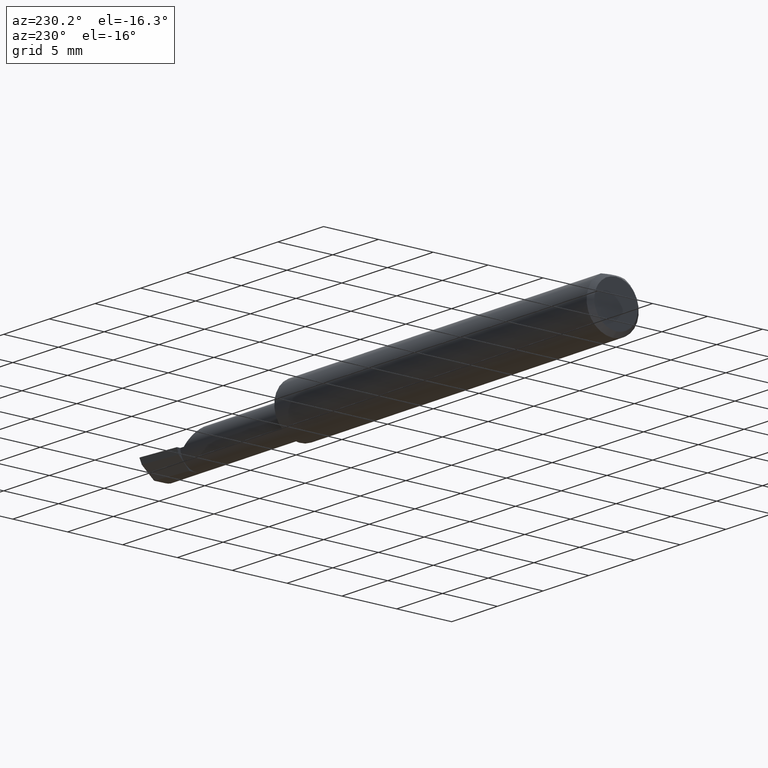
[diagram: clean part render]
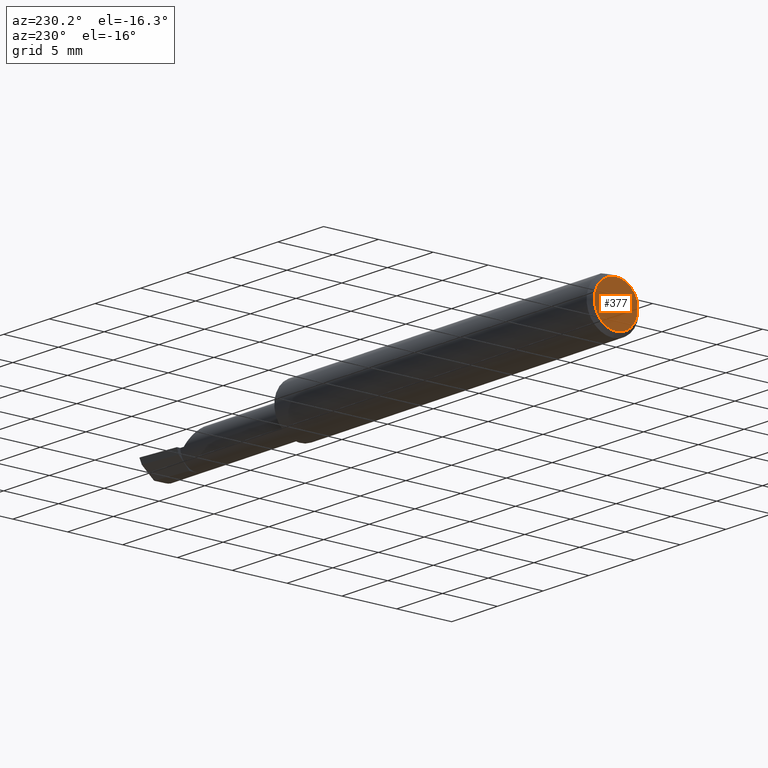
[diagram: same view with one face highlighted and labeled with its STEP entity id]
A machine part, auxiliary view. The second image highlights one B-rep face of the part: STEP entity #377.
In plain terms, the highlighted planar face has unit normal (1, 0, 0).
Its self-contained STEP definition (entity closure, byte-faithful):
#10 = CARTESIAN_POINT ( 'NONE',  ( 0.0000000000000000000, 1.054420894065869177E-17, 0.07859999999999965625 ) ) ;
#19 = EDGE_CURVE ( 'NONE', #617, #42, #270, .T. ) ;
#37 = CARTESIAN_POINT ( 'NONE',  ( 0.0000000000000000000, 0.0000000000000000000, -0.07859999999999965625 ) ) ;
#42 = VERTEX_POINT ( 'NONE', #10 ) ;
#51 = DIRECTION ( 'NONE',  ( -1.000000000000000000, -0.0000000000000000000, -0.0000000000000000000 ) ) ;
#99 = DIRECTION ( 'NONE',  ( 0.0000000000000000000, 0.0000000000000000000, 1.000000000000000000 ) ) ;
#102 = DIRECTION ( 'NONE',  ( 0.0000000000000000000, 0.0000000000000000000, -1.000000000000000000 ) ) ;
#116 = EDGE_LOOP ( 'NONE', ( #465, #260 ) ) ;
#204 = CARTESIAN_POINT ( 'NONE',  ( 0.0000000000000000000, 0.0000000000000000000, 0.0000000000000000000 ) ) ;
#254 = EDGE_CURVE ( 'NONE', #42, #617, #553, .T. ) ;
#258 = FACE_OUTER_BOUND ( 'NONE', #116, .T. ) ;
#260 = ORIENTED_EDGE ( 'NONE', *, *, #254, .T. ) ;
#263 = AXIS2_PLACEMENT_3D ( 'NONE', #204, #51, #348 ) ;
#270 = CIRCLE ( 'NONE', #654, 0.07859999999999965625 ) ;
#348 = DIRECTION ( 'NONE',  ( 0.0000000000000000000, 0.0000000000000000000, 1.000000000000000000 ) ) ;
#377 = ADVANCED_FACE ( 'NONE', ( #258 ), #513, .F. ) ;
#404 = DIRECTION ( 'NONE',  ( -1.000000000000000000, -0.0000000000000000000, -0.0000000000000000000 ) ) ;
#405 = DIRECTION ( 'NONE',  ( 1.000000000000000000, 0.0000000000000000000, 0.0000000000000000000 ) ) ;
#452 = CARTESIAN_POINT ( 'NONE',  ( 0.0000000000000000000, 0.0000000000000000000, 0.0000000000000000000 ) ) ;
#465 = ORIENTED_EDGE ( 'NONE', *, *, #19, .T. ) ;
#506 = CARTESIAN_POINT ( 'NONE',  ( 0.0000000000000000000, 0.0000000000000000000, 0.0000000000000000000 ) ) ;
#513 = PLANE ( 'NONE',  #619 ) ;
#553 = CIRCLE ( 'NONE', #263, 0.07859999999999965625 ) ;
#617 = VERTEX_POINT ( 'NONE', #37 ) ;
#619 = AXIS2_PLACEMENT_3D ( 'NONE', #452, #405, #102 ) ;
#654 = AXIS2_PLACEMENT_3D ( 'NONE', #506, #404, #99 ) ;